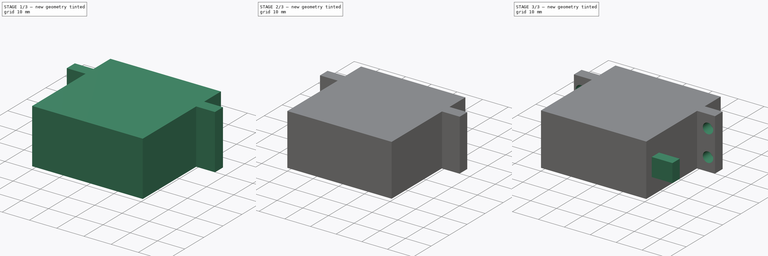
[diagram: build sequence overview — one tinted view per stage of 3, left to right]
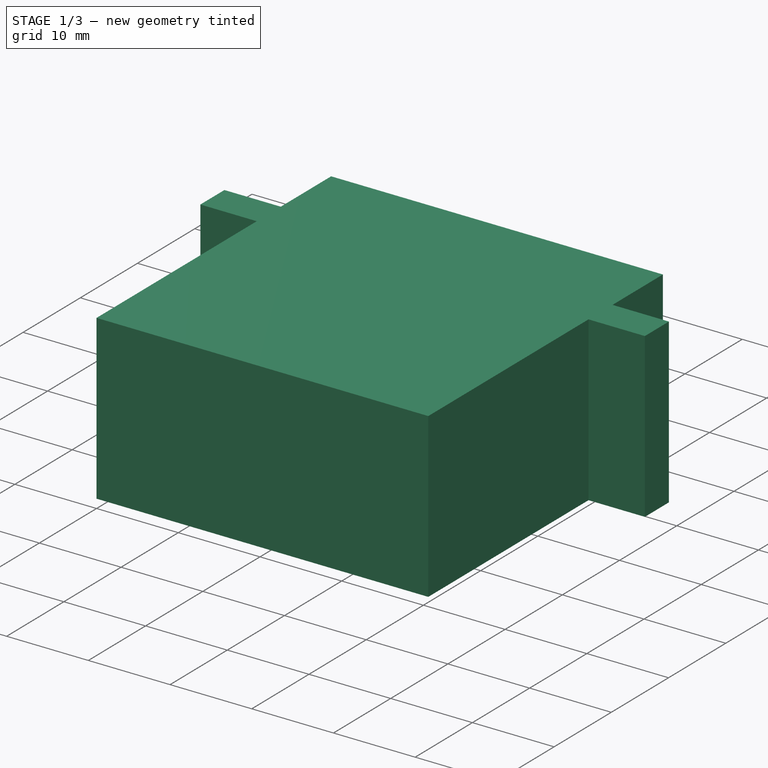
[diagram: stage 1 of 3 — iso view after this stage's code; geometry added in this stage tinted green]
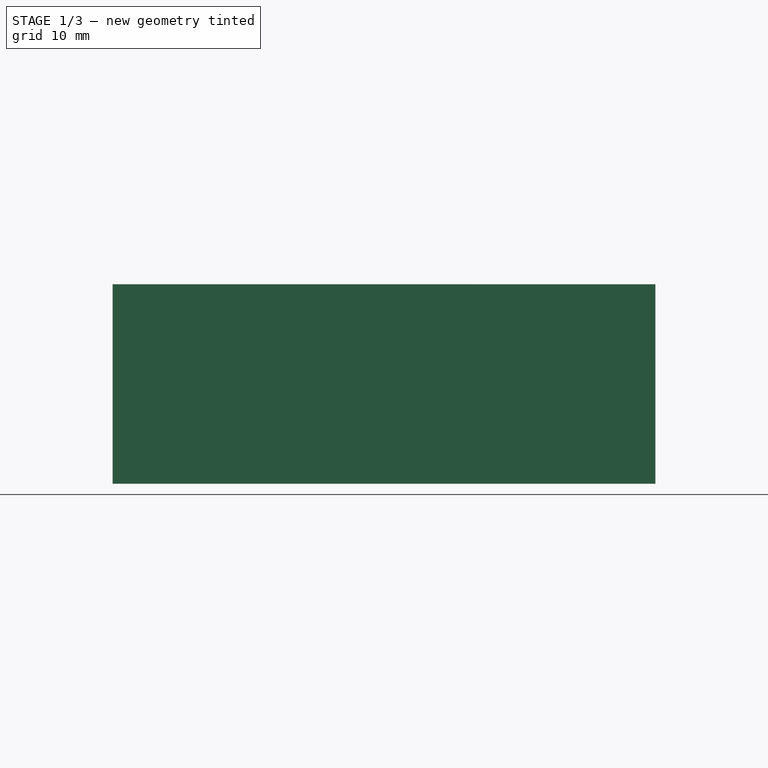
[diagram: stage 1 of 3 — front view after this stage's code; geometry added in this stage tinted green]
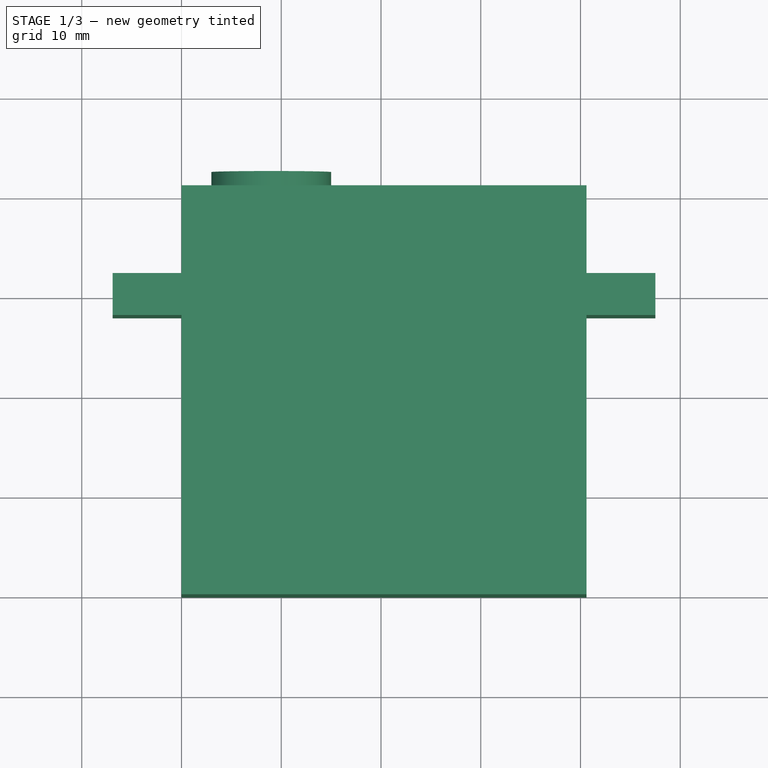
[diagram: stage 1 of 3 — top view after this stage's code; geometry added in this stage tinted green]
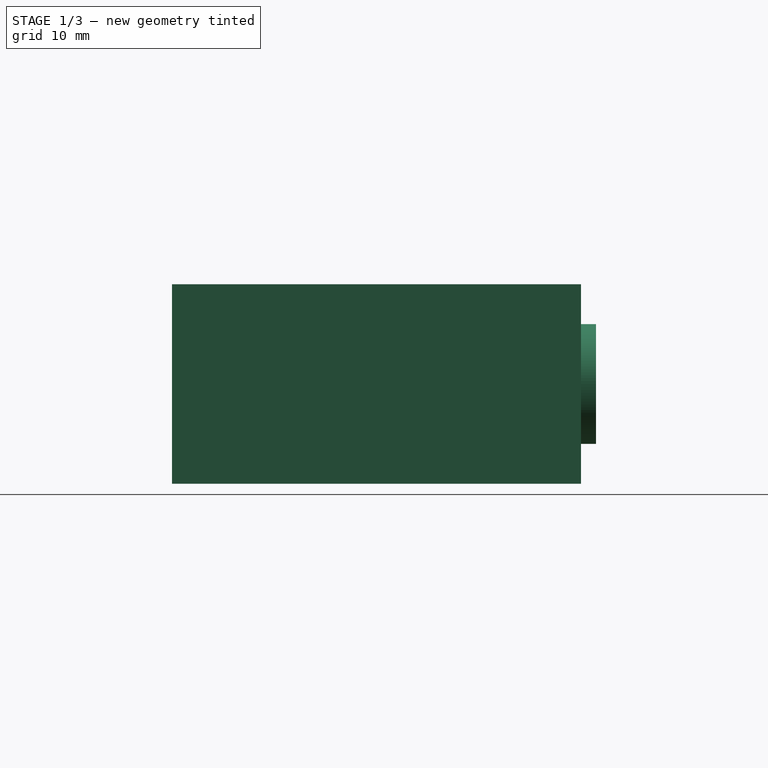
[diagram: stage 1 of 3 — right view after this stage's code; geometry added in this stage tinted green]
FCSTD DOCUMENT  (FreeCAD 0.19R24276 (Git))
Label: Servo_25kg
License: All rights reserved
LicenseURL: http://en.wikipedia.org/wiki/All_rights_reserved
objects: Sketcher::SketchObject×5, PartDesign::Pad×4, PartDesign::Pocket×1, PartDesign::Body×1
note: 16 computed .brp shape members not serialized (recipe doc carries the construction recipe); baked Part::Feature solids carry a one-line shape summary decoded from their .brp

FEATURE [Sketcher::SketchObject] Sketch
  FullyConstrained = false
  MapMode = 5
  Support = -> [XY_Plane]
  sketch-geometry (13):
    g0: LineSegment StartX=0 StartY=0 StartZ=0 EndX=40.6 EndY=0 EndZ=0
    g1: LineSegment StartX=40.6 StartY=0 StartZ=0 EndX=40.6 EndY=28 EndZ=0
    g2: LineSegment StartX=40.6 StartY=41 StartZ=0 EndX=0 EndY=41 EndZ=0
    g3: LineSegment StartX=0 StartY=41 StartZ=0 EndX=0 EndY=32.2 EndZ=0
    g4: LineSegment StartX=0 StartY=28 StartZ=0 EndX=-6.9 EndY=28 EndZ=0
    g5: LineSegment StartX=-6.9 StartY=28 StartZ=0 EndX=-6.9 EndY=32.2 EndZ=0
    g6: LineSegment StartX=-6.9 StartY=32.2 StartZ=0 EndX=0 EndY=32.2 EndZ=0
    g7: LineSegment StartX=0 StartY=28 StartZ=0 EndX=0 EndY=0 EndZ=0
    g8: LineSegment StartX=20.3 StartY=0 StartZ=0 EndX=20.3 EndY=43.7151 EndZ=0
    g9: LineSegment StartX=40.6 StartY=28 StartZ=0 EndX=47.5 EndY=28 EndZ=0
    g10: LineSegment StartX=47.5 StartY=28 StartZ=0 EndX=47.5 EndY=32.2 EndZ=0
    g11: LineSegment StartX=47.5 StartY=32.2 StartZ=0 EndX=40.6 EndY=32.2 EndZ=0
    g12: LineSegment StartX=40.6 StartY=32.2 StartZ=0 EndX=40.6 EndY=41 EndZ=0
  constraints (35):
    c: Coincident(g0,g1)
    c: Coincident(g12,g2)
    c: Coincident(g2,g3)
    c: Coincident(g7,g0)
    c: Horizontal(g0)
    c: Horizontal(g2)
    c: Vertical(g1)
    c: Vertical(g3)
    c: Coincident(g0,g-1)
    c: DistanceX(g0,g0) = 40.6
    c: DistanceY(g7,g3) = 41
    c: Horizontal(g4)
    c: DistanceY(g0,g4) = 28
    c: Coincident(g5,g4)
    c: Vertical(g5)
    c: Coincident(g6,g5)
    c: Horizontal(g6)
    c: DistanceY(g5,g5) = 4.2
    c: Coincident(g3,g6)
    c: Coincident(g7,g4)
    c: Tangent(g3,g7)
    c: Vertical(g8)
    c: Symmetric(g0,g0,g8)
    c: Horizontal(g9)
    c: Coincident(g10,g9)
    c: Vertical(g10)
    c: Coincident(g11,g10)
    c: Horizontal(g11)
    c: PointOnObject(g1,g9)
    c: PointOnObject(g12,g11)
    c: Tangent(g1,g12)
    c: Horizontal(g4,g1)
    c: Horizontal(g11,g3)
    c: DistanceX(g8,g9) = 27.2
    c: DistanceX(g4,g8) = 27.2
FEATURE [PartDesign::Pad] Pad
  Direction = (1,1,1)
  Length = 20
  Length2 = 100
  Profile = -> Sketch
  Type = 0
FEATURE [Sketcher::SketchObject] Sketch001
  FullyConstrained = true
  MapMode = 5
  Placement = pos=(0,41,0) rot=(0,0.707107,0.707107;3.14159rad)
  Support = -> [Pad]
  sketch-geometry (1):
    g0: Circle CenterX=-9 CenterY=10 CenterZ=0 NormalX=0 NormalY=0 NormalZ=1 AngleXU=0 Radius=6
  constraints (3):
    c: Diameter(g0) = 12
    c: DistanceX(g0,g-1) = 9
    c: DistanceY(g-1,g0) = 10
FEATURE [PartDesign::Pad] Pad001
  BaseFeature = -> Pad
  Direction = (1,1,1)
  Length = 1.5
  Length2 = 100
  Profile = -> Sketch001
  Type = 0
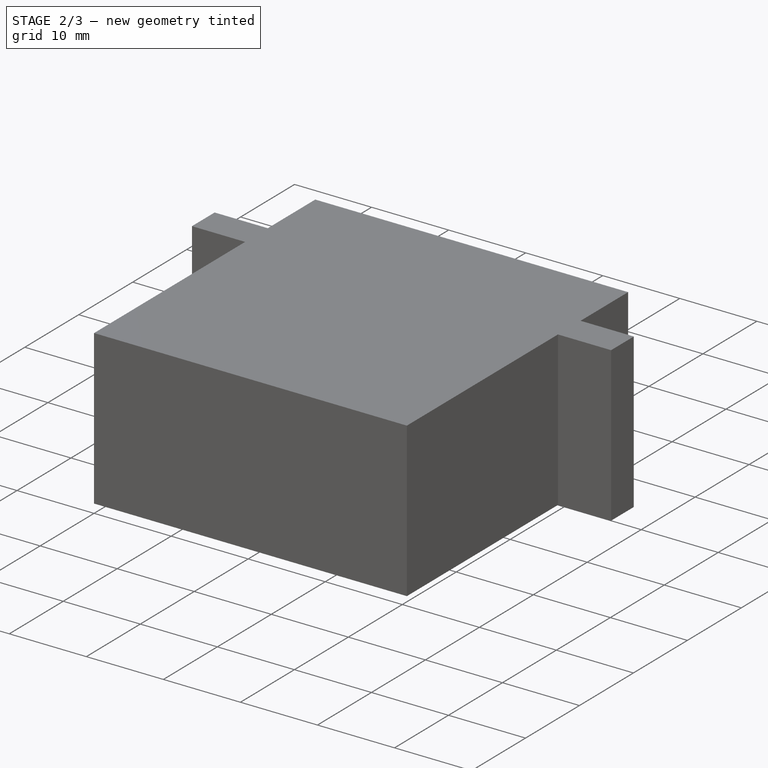
[diagram: stage 2 of 3 — iso view after this stage's code; geometry added in this stage tinted green]
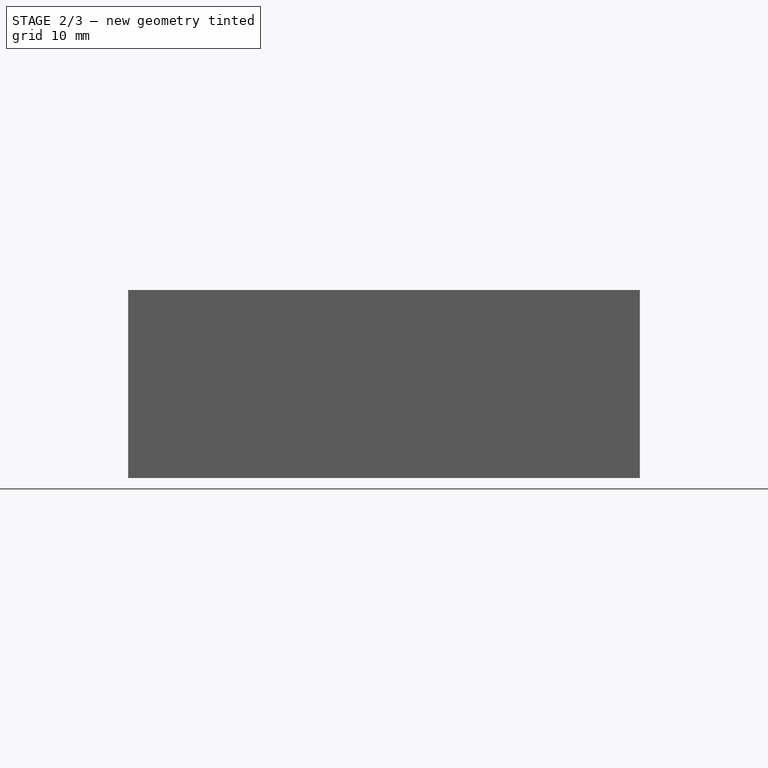
[diagram: stage 2 of 3 — front view after this stage's code; geometry added in this stage tinted green]
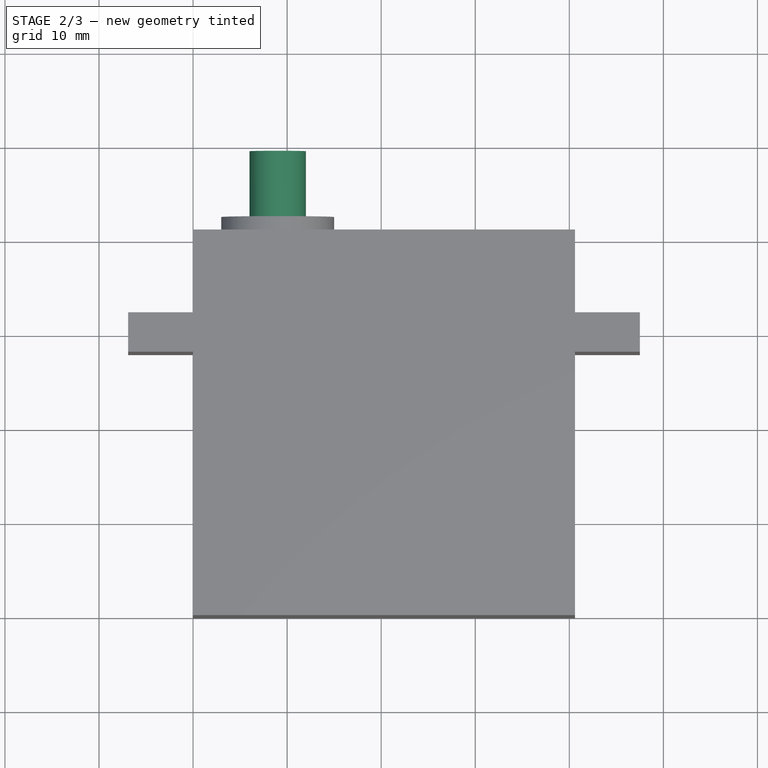
[diagram: stage 2 of 3 — top view after this stage's code; geometry added in this stage tinted green]
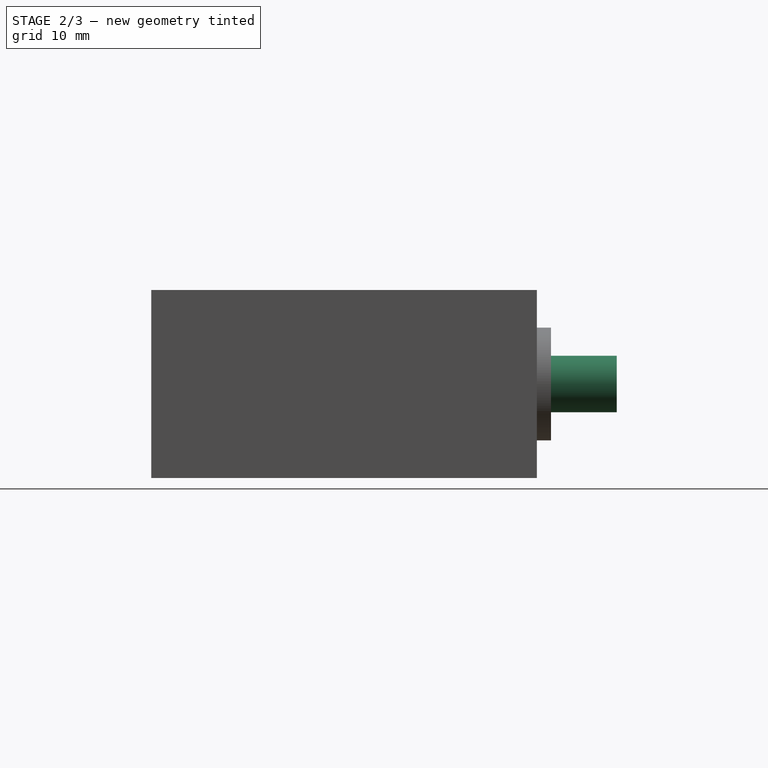
[diagram: stage 2 of 3 — right view after this stage's code; geometry added in this stage tinted green]
FEATURE [Sketcher::SketchObject] Sketch002
  FullyConstrained = true
  MapMode = 5
  Placement = pos=(0,42.5,0) rot=(0,0.707107,0.707107;3.14159rad)
  Support = -> [Pad001]
  sketch-geometry (1):
    g0: Circle CenterX=-9 CenterY=10 CenterZ=0 NormalX=0 NormalY=0 NormalZ=1 AngleXU=0 Radius=3
  constraints (3):
    c: DistanceY(g-1,g0) = 10
    c: DistanceX(g0,g-1) = 9
    c: Diameter(g0) = 6
FEATURE [PartDesign::Pad] Pad002
  BaseFeature = -> Pad001
  Direction = (1,1,1)
  Length = 7
  Length2 = 100
  Profile = -> Sketch002
  Type = 0
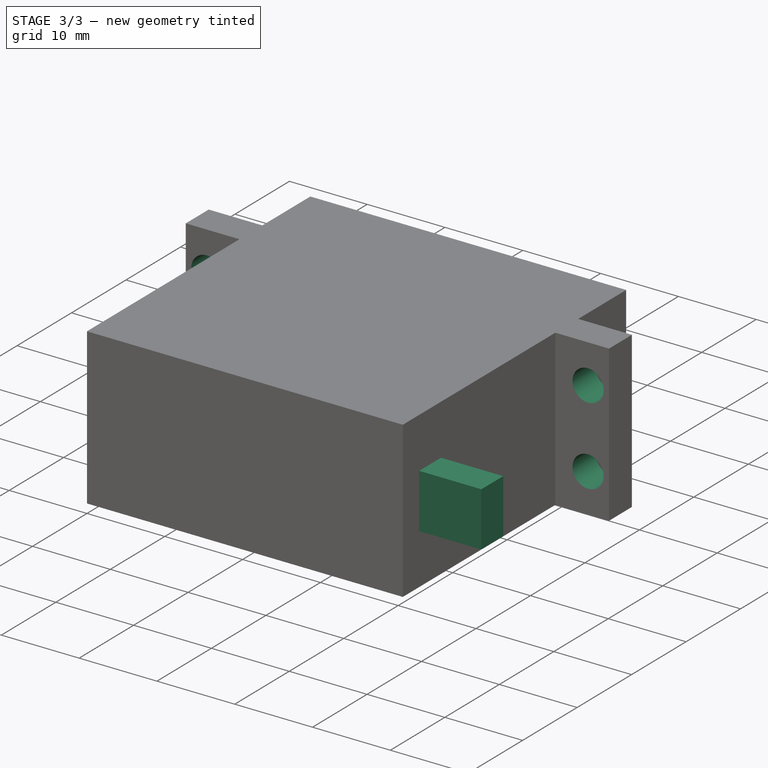
[diagram: stage 3 of 3 — iso view after this stage's code; geometry added in this stage tinted green]
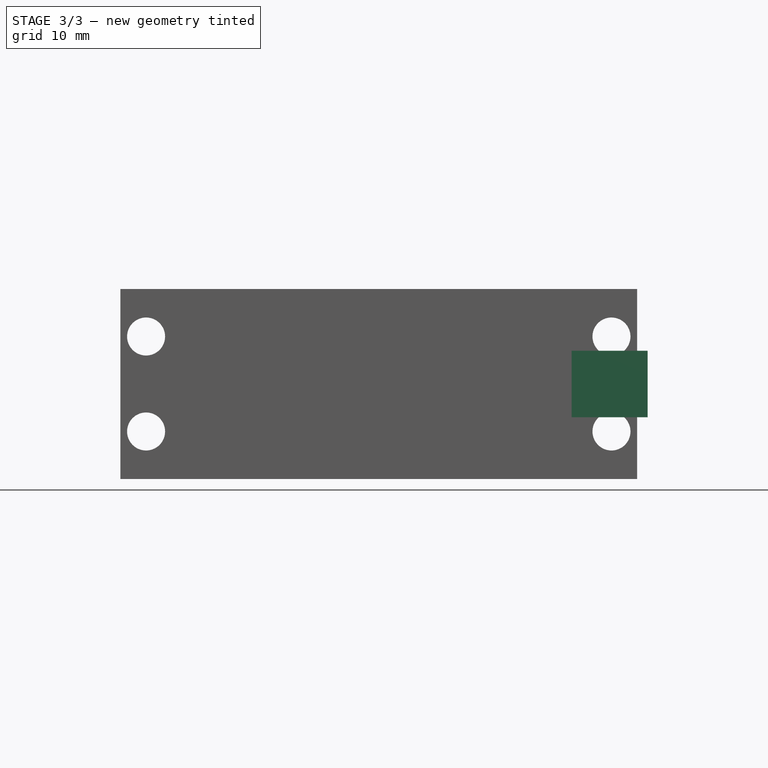
[diagram: stage 3 of 3 — front view after this stage's code; geometry added in this stage tinted green]
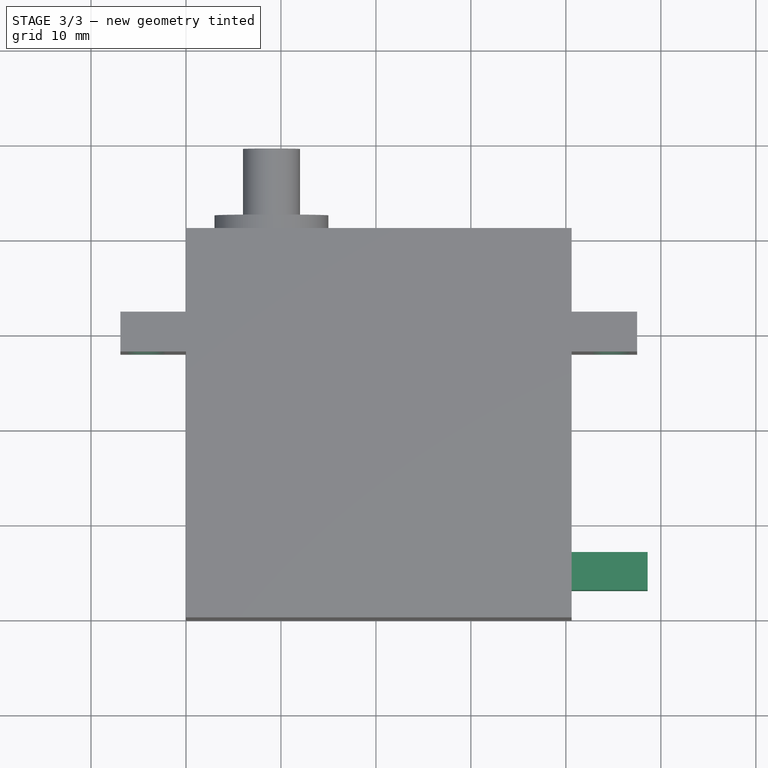
[diagram: stage 3 of 3 — top view after this stage's code; geometry added in this stage tinted green]
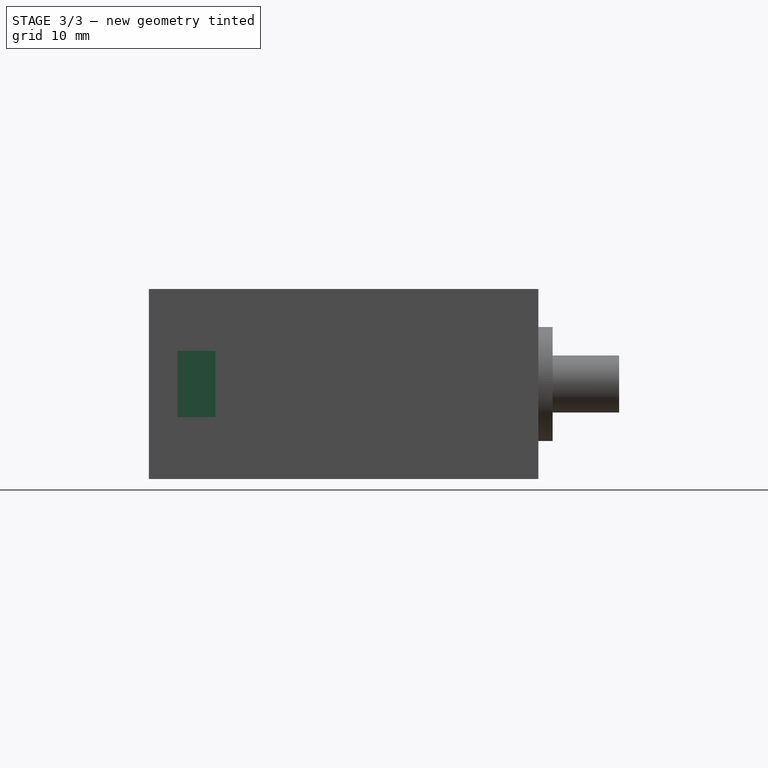
[diagram: stage 3 of 3 — right view after this stage's code; geometry added in this stage tinted green]
FEATURE [Sketcher::SketchObject] Sketch003
  FullyConstrained = false
  MapMode = 5
  Placement = pos=(0,32.2,0) rot=(0,0.707107,0.707107;3.14159rad)
  Support = -> [Pad002]
  sketch-geometry (6):
    g0: Circle CenterX=4.2 CenterY=15 CenterZ=0 NormalX=0 NormalY=0 NormalZ=1 AngleXU=0 Radius=2
    g1: Circle CenterX=4.2 CenterY=5 CenterZ=0 NormalX=0 NormalY=0 NormalZ=1 AngleXU=0 Radius=2
    g2: LineSegment StartX=-44.8 StartY=10 StartZ=0 EndX=4.2 EndY=10 EndZ=0
    g3: LineSegment StartX=-20.3 StartY=-8.99804 StartZ=0 EndX=-20.3 EndY=39.1075 EndZ=0
    g4: Circle CenterX=-44.8 CenterY=5 CenterZ=0 NormalX=0 NormalY=0 NormalZ=1 AngleXU=0 Radius=2
    g5: Circle CenterX=-44.8 CenterY=15 CenterZ=0 NormalX=0 NormalY=0 NormalZ=1 AngleXU=0 Radius=2
  constraints (15):
    c: Equal(g1,g0)
    c: Diameter(g1) = 4
    c: Vertical(g1,g0)
    c: Horizontal(g2)
    c: DistanceY(g-1,g2) = 10
    c: Symmetric(g0,g1,g2)
    c: DistanceY(g1,g0) = 10
    c: Vertical(g3)
    c: DistanceX(g3,g-1) = 20.3
    c: DistanceX(g3,g1) = 24.5
    c: Equal(g4,g5)
    c: Diameter(g4) = 4
    c: Vertical(g4,g5)
    c: Symmetric(g4,g5,g2)
    c: DistanceX(g4,g3) = 24.5
FEATURE [PartDesign::Pocket] Pocket
  BaseFeature = -> Pad002
  Length = 5
  Length2 = 100
  Profile = -> Sketch003
  Type = 1
FEATURE [Sketcher::SketchObject] Sketch004
  FullyConstrained = false
  MapMode = 5
  Placement = pos=(40.6,0,0) rot=(0.57735,0.57735,0.57735;2.0944rad)
  Support = -> [Pocket]
  sketch-geometry (5):
    g0: LineSegment StartX=3 StartY=13.5 StartZ=0 EndX=7 EndY=13.5 EndZ=0
    g1: LineSegment StartX=7 StartY=13.5 StartZ=0 EndX=7 EndY=6.5 EndZ=0
    g2: LineSegment StartX=7 StartY=6.5 StartZ=0 EndX=3 EndY=6.5 EndZ=0
    g3: LineSegment StartX=3 StartY=6.5 StartZ=0 EndX=3 EndY=13.5 EndZ=0
    g4: LineSegment StartX=3 StartY=10 StartZ=0 EndX=46.5166 EndY=10 EndZ=0
  constraints (14):
    c: Coincident(g0,g1)
    c: Coincident(g1,g2)
    c: Coincident(g2,g3)
    c: Coincident(g3,g0)
    c: Horizontal(g0)
    c: Horizontal(g2)
    c: Vertical(g1)
    c: Vertical(g3)
    c: DistanceX(g-1,g2) = 3
    c: DistanceX(g2,g1) = 4
    c: Horizontal(g4)
    c: DistanceY(g-1,g4) = 10
    c: Symmetric(g2,g0,g4)
    c: DistanceY(g3,g3) = 7
FEATURE [PartDesign::Pad] Pad003
  BaseFeature = -> Pocket
  Direction = (1,1,1)
  Length = 8
  Length2 = 100
  Profile = -> Sketch004
  Type = 0
FEATURE [PartDesign::Body] Body
  Group = -> [Sketch,Pad,Sketch001,Pad001,Sketch002,Pad002,Sketch003,Pocket,Sketch004,Pad003]
  Origin = -> Origin
  Tip = -> Pad003
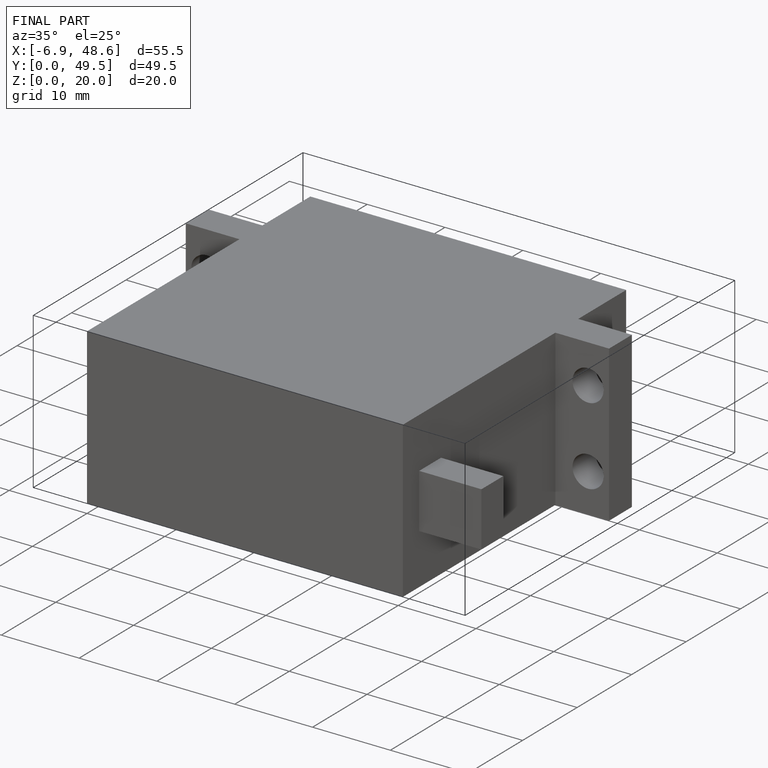
[diagram: finished part — iso view with bounding-box wireframe]
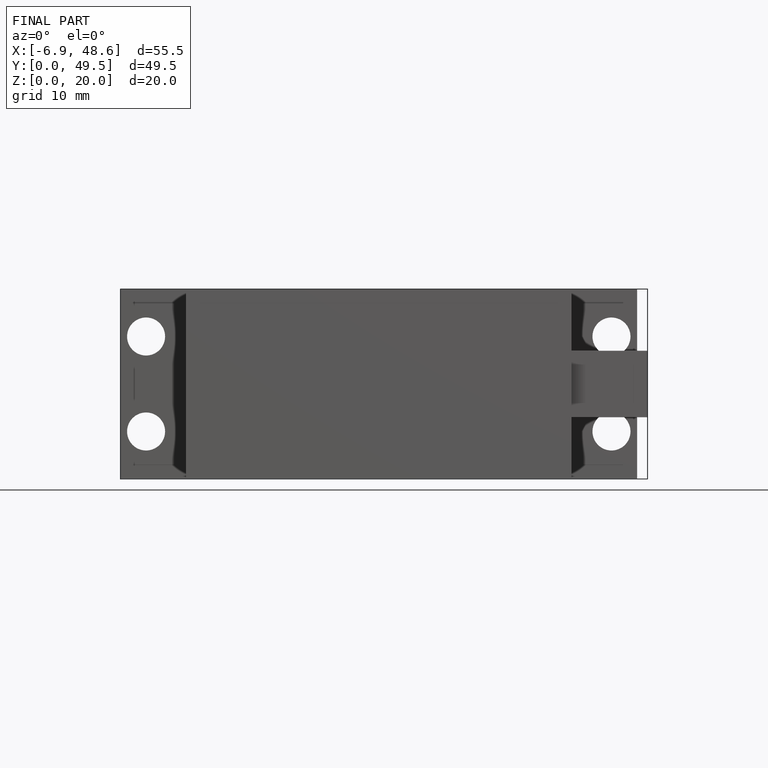
[diagram: finished part — front view with bounding-box wireframe]
